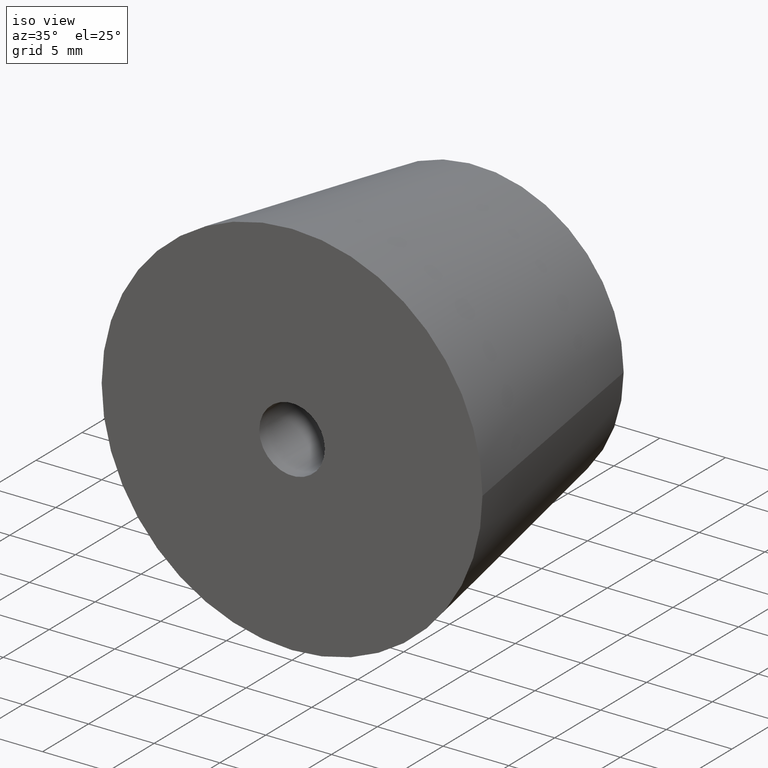
[diagram: clean part render]
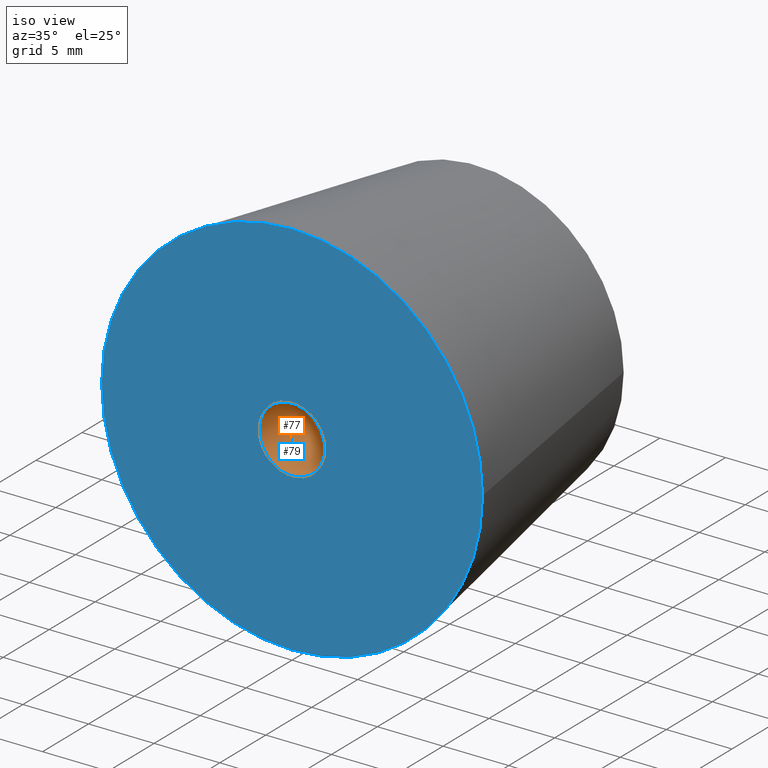
[diagram: same view with the hole feature highlighted: cylindrical wall and planar end face, labeled with their STEP entity ids]
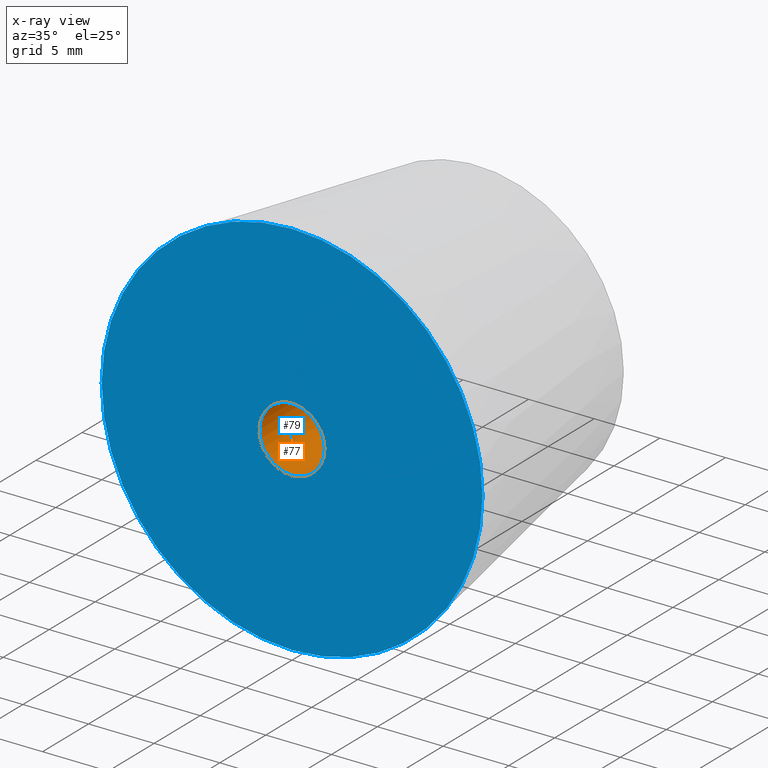
[diagram: x-ray of the same camera — body ghosted, the hole faces saturated]
A machine part, iso view. The highlighted faces form one hole feature of diameter 5 mm: the cylindrical wall (entity #77, orange) and its adjacent planar end face (entity #79, blue) — they share a circular edge in the B-rep.
The next image is the same camera in x-ray (body ghosted, the hole faces saturated) — the bore reads through the body.
Wall:
#17=CYLINDRICAL_SURFACE('',#88,2.5);
#20=FACE_BOUND('',#35,.T.);
#26=FACE_OUTER_BOUND('',#34,.T.);
#34=EDGE_LOOP('',(#64));
#35=EDGE_LOOP('',(#65));
#43=CIRCLE('',#85,2.5);
#45=CIRCLE('',#89,2.5);
#49=VERTEX_POINT('',#125);
#51=VERTEX_POINT('',#131);
#55=EDGE_CURVE('',#49,#49,#43,.T.);
#57=EDGE_CURVE('',#51,#51,#45,.T.);
#64=ORIENTED_EDGE('',*,*,#57,.F.);
#65=ORIENTED_EDGE('',*,*,#55,.T.);
#77=ADVANCED_FACE('',(#26,#20),#17,.F.);
#85=AXIS2_PLACEMENT_3D('',#126,#101,#102);
#88=AXIS2_PLACEMENT_3D('',#130,#107,#108);
#89=AXIS2_PLACEMENT_3D('',#132,#109,#110);
#101=DIRECTION('center_axis',(0.,1.,0.));
#102=DIRECTION('ref_axis',(-1.,0.,0.));
#107=DIRECTION('center_axis',(0.,1.,0.));
#108=DIRECTION('ref_axis',(-1.,0.,0.));
#109=DIRECTION('center_axis',(0.,1.,0.));
#110=DIRECTION('ref_axis',(-1.,0.,0.));
#125=CARTESIAN_POINT('',(2.5,9.,-3.06161699786838E-16));
#126=CARTESIAN_POINT('Origin',(0.,9.,0.));
#130=CARTESIAN_POINT('Origin',(0.,-25.6289381861993,0.));
#131=CARTESIAN_POINT('',(2.5,0.,-3.06161699786838E-16));
#132=CARTESIAN_POINT('Origin',(0.,0.,0.));
End face:
#22=FACE_BOUND('',#39,.T.);
#28=FACE_OUTER_BOUND('',#38,.T.);
#38=EDGE_LOOP('',(#68));
#39=EDGE_LOOP('',(#69));
#45=CIRCLE('',#89,2.5);
#47=CIRCLE('',#93,14.5);
#51=VERTEX_POINT('',#131);
#53=VERTEX_POINT('',#137);
#57=EDGE_CURVE('',#51,#51,#45,.T.);
#59=EDGE_CURVE('',#53,#53,#47,.T.);
#68=ORIENTED_EDGE('',*,*,#59,.F.);
#69=ORIENTED_EDGE('',*,*,#57,.T.);
#74=PLANE('',#92);
#79=ADVANCED_FACE('',(#28,#22),#74,.F.);
#89=AXIS2_PLACEMENT_3D('',#132,#109,#110);
#92=AXIS2_PLACEMENT_3D('',#136,#115,#116);
#93=AXIS2_PLACEMENT_3D('',#138,#117,#118);
#109=DIRECTION('center_axis',(0.,1.,0.));
#110=DIRECTION('ref_axis',(-1.,0.,0.));
#115=DIRECTION('center_axis',(0.,1.,0.));
#116=DIRECTION('ref_axis',(0.,0.,1.));
#117=DIRECTION('center_axis',(0.,1.,0.));
#118=DIRECTION('ref_axis',(1.,0.,0.));
#131=CARTESIAN_POINT('',(2.5,0.,-3.06161699786838E-16));
#132=CARTESIAN_POINT('Origin',(0.,0.,0.));
#136=CARTESIAN_POINT('Origin',(0.,0.,0.));
#137=CARTESIAN_POINT('',(14.5,0.,0.));
#138=CARTESIAN_POINT('Origin',(0.,0.,0.));